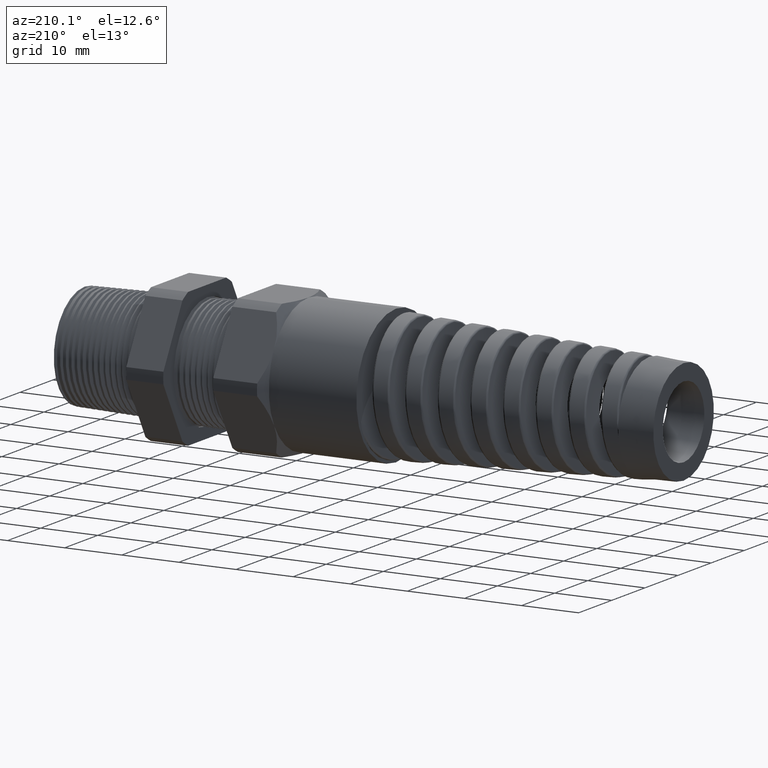
[diagram: clean part render]
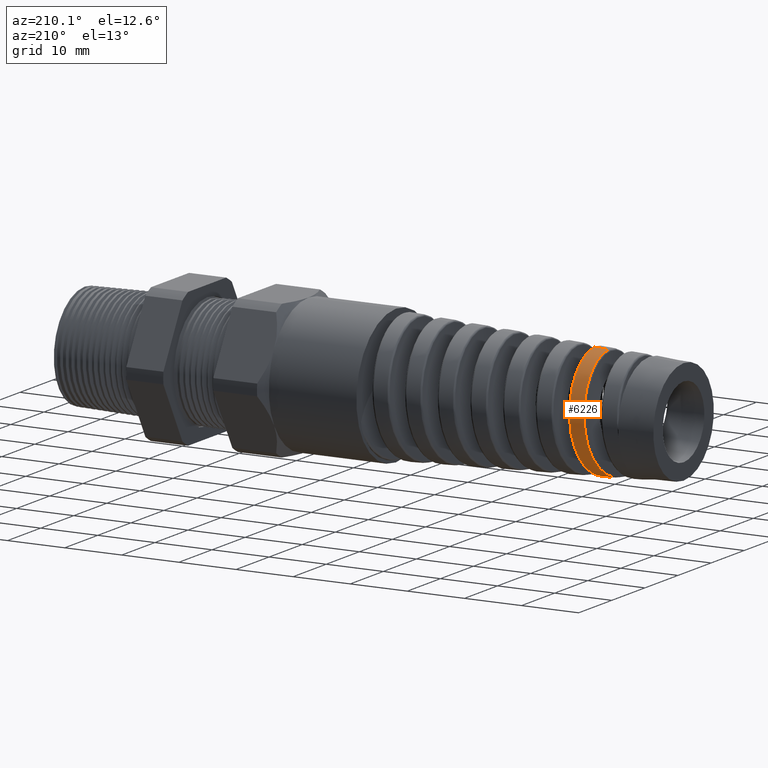
[diagram: same view with one face highlighted and labeled with its STEP entity id]
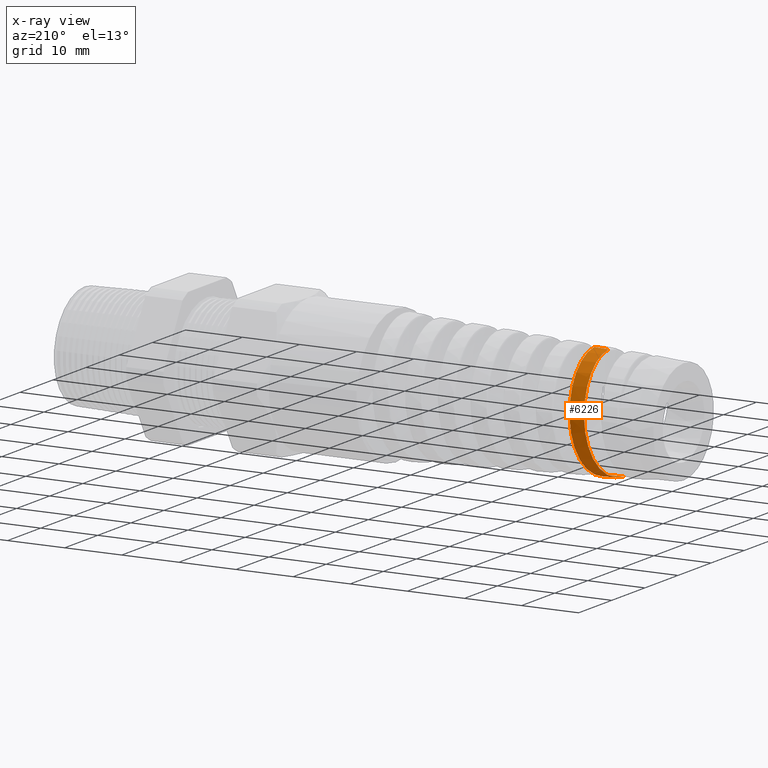
[diagram: x-ray of the same camera — body ghosted, the highlighted face saturated]
A machine part, auxiliary view. The second image highlights one B-rep face of the part: STEP entity #6226.
The next image is the same camera in x-ray: the body ghosted, the highlighted face saturated — about 0% of this face is hidden behind the body in this view.
In plain terms, the highlighted conical surface has half-angle 2.5 deg.
Its self-contained STEP definition (entity closure, byte-faithful):
#323 = CARTESIAN_POINT ( 'NONE',  ( -3.443178324159461100, -1.183486831128714200E-015, -0.3794830795497082200 ) ) ;
#458 = LINE ( 'NONE', #567, #564 ) ;
#460 = CARTESIAN_POINT ( 'NONE',  ( -3.235291199206982200, 4.377409241235282400E-014, 0.3885596274436731200 ) ) ;
#464 = CARTESIAN_POINT ( 'NONE',  ( -3.333009529310336600, 8.372223358021372500E-013, 0.3842931530119154100 ) ) ;
#520 = FACE_OUTER_BOUND ( 'NONE', #6227, .T. ) ;
#522 = CONICAL_SURFACE ( 'NONE', #534, 0.4699999999999998600, 0.04363323129985858400 ) ;
#528 = DIRECTION ( 'NONE',  ( 0.0000000000000000000, 0.0000000000000000000, -1.000000000000000000 ) ) ;
#530 = DIRECTION ( 'NONE',  ( 1.000000000000000000, 0.0000000000000000000, 0.0000000000000000000 ) ) ;
#532 = CARTESIAN_POINT ( 'NONE',  ( -1.369999999999999900, 0.0000000000000000000, 0.0000000000000000000 ) ) ;
#534 = AXIS2_PLACEMENT_3D ( 'NONE', #532, #530, #528 ) ;
#563 = DIRECTION ( 'NONE',  ( 0.9990482215818576900, 5.341834311772765600E-018, 0.04361938736533634700 ) ) ;
#564 = VECTOR ( 'NONE', #563, 39.37007874015748100 ) ;
#567 = CARTESIAN_POINT ( 'NONE',  ( -1.369999999999999900, 5.755839955992558400E-017, 0.4699999999999998600 ) ) ;
#568 = CARTESIAN_POINT ( 'NONE',  ( -3.402837838483439000, 0.3482261599920595800, -0.1556944496728563900 ) ) ;
#570 = CARTESIAN_POINT ( 'NONE',  ( -3.403984696302419600, 0.3429009058366656600, -0.1669905103815940700 ) ) ;
#573 = CARTESIAN_POINT ( 'NONE',  ( -3.406295635786484900, 0.3310753016979928200, -0.1891536233723160900 ) ) ;
#575 = CARTESIAN_POINT ( 'NONE',  ( -3.407457617353016200, 0.3245786956575668600, -0.1999958401092232500 ) ) ;
#577 = CARTESIAN_POINT ( 'NONE',  ( -3.410909521721167800, 0.3037525021543332500, -0.2311659064295091800 ) ) ;
#578 = CARTESIAN_POINT ( 'NONE',  ( -3.413189451317950200, 0.2879752762551450700, -0.2503950311962809300 ) ) ;
#579 = CARTESIAN_POINT ( 'NONE',  ( -3.416641002391589000, 0.2614714158243556800, -0.2769060516976227800 ) ) ;
#580 = CARTESIAN_POINT ( 'NONE',  ( -3.417803548159032500, 0.2521059960474549800, -0.2853941334282745800 ) ) ;
#581 = CARTESIAN_POINT ( 'NONE',  ( -3.420118061610111200, 0.2326763562757941100, -0.3013171878992535500 ) ) ;
#584 = CARTESIAN_POINT ( 'NONE',  ( -3.421267877154137200, 0.2226360485682213900, -0.3087434204736289000 ) ) ;
#585 = CARTESIAN_POINT ( 'NONE',  ( -3.424711768729546500, 0.1915656075891494500, -0.3294576630136230000 ) ) ;
#587 = CARTESIAN_POINT ( 'NONE',  ( -3.426998881636764700, 0.1695950172118683700, -0.3411964076006497900 ) ) ;
#590 = CARTESIAN_POINT ( 'NONE',  ( -3.430480356652744400, 0.1346947963591412500, -0.3555898681674752900 ) ) ;
#592 = CARTESIAN_POINT ( 'NONE',  ( -3.431640912325682400, 0.1228229118337406100, -0.3598059049018115200 ) ) ;
#594 = CARTESIAN_POINT ( 'NONE',  ( -3.433944397609687700, 0.09891780689295963400, -0.3669940083191271500 ) ) ;
#597 = CARTESIAN_POINT ( 'NONE',  ( -3.436239451820887400, 0.07475904334075524100, -0.3729769692934668000 ) ) ;
#598 = CARTESIAN_POINT ( 'NONE',  ( -3.438539587208713200, 0.05010008173049618200, -0.3765736614640773900 ) ) ;
#599 = CARTESIAN_POINT ( 'NONE',  ( -3.440852057838745800, 0.02518723023048390800, -0.3789547264209223200 ) ) ;
#600 = CARTESIAN_POINT ( 'NONE',  ( -3.442020273403658700, 0.01253718465889694600, -0.3795336411376426000 ) ) ;
#601 = CARTESIAN_POINT ( 'NONE',  ( -3.443178324159461100, -1.183486831128714200E-015, -0.3794830795497082200 ) ) ;
#608 = B_SPLINE_CURVE_WITH_KNOTS ( 'NONE', 3,
 ( #601, #600, #599, #598, #597, #594, #592, #590, #587, #585, #584, #581, #580, #579, #578, #577, #575, #573, #570, #568, #716, #715, #712, #710, #708, #706, #705, #704, #703, #702, #699, #697, #695, #693, #691, #690, #689, #688, #687, #685, #682, #680, #678, #677, #676, #675, #674, #671 ),
 .UNSPECIFIED., .F., .F.,
 ( 4, 2, 1, 2, 2, 2, 2, 2, 2, 2, 2, 2, 2, 1, 2, 2, 2, 2, 2, 2, 2, 2, 2, 2, 4 ),
 ( 0.04691067381153286200, 0.04787279394105492500, 0.04883491407057698900, 0.04979703420009905900, 0.05075915432962112300, 0.05268339458866525000, 0.05364551471818732000, 0.05460763484770938400, 0.05653187510675351800, 0.05749399523627558200, 0.05845611536579764500, 0.06038035562484177900, 0.06134247575436384300, 0.06230459588388590600, 0.06326671601340797000, 0.06422883614293004000, 0.06615307640197416700, 0.06807731666101829400, 0.07000155692006242200, 0.07096367704958447800, 0.07192579717910654900, 0.07385003743815067600, 0.07577427769719480300, 0.07673639782671687300, 0.07769851795623894400 ),
 .UNSPECIFIED. ) ;
#671 = CARTESIAN_POINT ( 'NONE',  ( -3.333009529310336600, 8.372223358021372500E-013, 0.3842931530119154100 ) ) ;
#674 = CARTESIAN_POINT ( 'NONE',  ( -3.334151353107198900, 0.01251752826588205600, 0.3842432999082817100 ) ) ;
#675 = CARTESIAN_POINT ( 'NONE',  ( -3.335305681234968400, 0.02516429864577002200, 0.3835727297214183200 ) ) ;
#676 = CARTESIAN_POINT ( 'NONE',  ( -3.337594461052795700, 0.05010150450803210100, 0.3810175128944158200 ) ) ;
#677 = CARTESIAN_POINT ( 'NONE',  ( -3.338732491102881300, 0.06243148834652794500, 0.3791389262622830200 ) ) ;
#678 = CARTESIAN_POINT ( 'NONE',  ( -3.342142574163335000, 0.09901329363882931100, 0.3717396482657624500 ) ) ;
#680 = CARTESIAN_POINT ( 'NONE',  ( -3.344408210346031300, 0.1228611369366006400, 0.3644724515930055600 ) ) ;
#682 = CARTESIAN_POINT ( 'NONE',  ( -3.349016296401514700, 0.1694229590504959500, 0.3450746211259428400 ) ) ;
#685 = CARTESIAN_POINT ( 'NONE',  ( -3.351287435392326800, 0.1913980454523004400, 0.3332480466480701200 ) ) ;
#687 = CARTESIAN_POINT ( 'NONE',  ( -3.354702517954705400, 0.2224052750684893400, 0.3124816842545907700 ) ) ;
#688 = CARTESIAN_POINT ( 'NONE',  ( -3.355842311934848200, 0.2324169299660174800, 0.3050497252661677500 ) ) ;
#689 = CARTESIAN_POINT ( 'NONE',  ( -3.358134513752372800, 0.2517772047123161300, 0.2891444156139509900 ) ) ;
#690 = CARTESIAN_POINT ( 'NONE',  ( -3.359291693281401000, 0.2611569201340346900, 0.2806322722931923800 ) ) ;
#691 = CARTESIAN_POINT ( 'NONE',  ( -3.362729113215768600, 0.2877024593236640600, 0.2540476008095151600 ) ) ;
#693 = CARTESIAN_POINT ( 'NONE',  ( -3.364996495586628300, 0.3034750626503689400, 0.2348082675918288200 ) ) ;
#695 = CARTESIAN_POINT ( 'NONE',  ( -3.369569136390222900, 0.3312096834233239100, 0.1933373586594650800 ) ) ;
#697 = CARTESIAN_POINT ( 'NONE',  ( -3.371888600023303300, 0.3432051387096256600, 0.1709119321064159200 ) ) ;
#699 = CARTESIAN_POINT ( 'NONE',  ( -3.376456694878892800, 0.3622945430005324300, 0.1248629020211701900 ) ) ;
#702 = CARTESIAN_POINT ( 'NONE',  ( -3.378728026489019200, 0.3695503350020666900, 0.1010582216360037700 ) ) ;
#703 = CARTESIAN_POINT ( 'NONE',  ( -3.382181927787494500, 0.3769298590959517200, 0.06416328130272000400 ) ) ;
#704 = CARTESIAN_POINT ( 'NONE',  ( -3.383343063402994800, 0.3787962883903067100, 0.05164177739199721200 ) ) ;
#705 = CARTESIAN_POINT ( 'NONE',  ( -3.385639552439048600, 0.3812632428073166600, 0.02674374608187470400 ) ) ;
#706 = CARTESIAN_POINT ( 'NONE',  ( -3.387923209533215500, 0.3824971286274677100, 0.001857330932205700100 ) ) ;
#708 = CARTESIAN_POINT ( 'NONE',  ( -3.390205490851256400, 0.3813066349918637400, -0.02300404444048559700 ) ) ;
#710 = CARTESIAN_POINT ( 'NONE',  ( -3.392498593985313600, 0.3788901044428423200, -0.04785169424448034600 ) ) ;
#712 = CARTESIAN_POINT ( 'NONE',  ( -3.393655315496672200, 0.3770583688972533000, -0.06031941904989029200 ) ) ;
#715 = CARTESIAN_POINT ( 'NONE',  ( -3.397125710880855500, 0.3697221003552602100, -0.09734635955265104300 ) ) ;
#716 = CARTESIAN_POINT ( 'NONE',  ( -3.399405033465473700, 0.3624863495144461400, -0.1211816480285189300 ) ) ;
#2489 = CARTESIAN_POINT ( 'NONE',  ( -3.325575546051886500, 0.2041385207150590300, -0.3262197714629465600 ) ) ;
#2490 = CARTESIAN_POINT ( 'NONE',  ( -3.322113994325404600, 0.2358155628639989300, -0.3050941027512525900 ) ) ;
#2491 = CARTESIAN_POINT ( 'NONE',  ( -3.319840075113207800, 0.2552765978679143500, -0.2891241377344419500 ) ) ;
#2492 = CARTESIAN_POINT ( 'NONE',  ( -3.315262679015632300, 0.2909490723624295100, -0.2534983631299561600 ) ) ;
#2493 = CARTESIAN_POINT ( 'NONE',  ( -3.312936973506487100, 0.3072718500946265400, -0.2336158569482745000 ) ) ;
#2494 = CARTESIAN_POINT ( 'NONE',  ( -3.308355502080808200, 0.3352922364586281600, -0.1916392617312670200 ) ) ;
#2495 = CARTESIAN_POINT ( 'NONE',  ( -3.306085895187790100, 0.3471540560012071300, -0.1694459135149465900 ) ) ;
#2496 = CARTESIAN_POINT ( 'NONE',  ( -3.302641274590613300, 0.3616860001894786600, -0.1343344248477281500 ) ) ;
#2497 = CARTESIAN_POINT ( 'NONE',  ( -3.301481150151264200, 0.3659947359691857500, -0.1222683547056616200 ) ) ;
#2498 = CARTESIAN_POINT ( 'NONE',  ( -3.299183322661125100, 0.3733274198738849000, -0.09800882524340422100 ) ) ;
#2499 = CARTESIAN_POINT ( 'NONE',  ( -3.298041089494856000, 0.3763756736530798300, -0.08577104424885416400 ) ) ;
#2500 = CARTESIAN_POINT ( 'NONE',  ( -3.294619613089232700, 0.3837053585409980800, -0.04874183095937847200 ) ) ;
#2501 = CARTESIAN_POINT ( 'NONE',  ( -3.292344800650385000, 0.3861893168545961200, -0.02360495901464681700 ) ) ;
#2502 = CARTESIAN_POINT ( 'NONE',  ( -3.287728526739825500, 0.3861401289578322800, 0.02740162230581735800 ) ) ;
#2503 = CARTESIAN_POINT ( 'NONE',  ( -3.285456715487482500, 0.3836140955934085300, 0.05248836301568813500 ) ) ;
#2504 = CARTESIAN_POINT ( 'NONE',  ( -3.282039709864888400, 0.3762212727563706800, 0.08951267835653414800 ) ) ;
#2505 = CARTESIAN_POINT ( 'NONE',  ( -3.280899726953312900, 0.3731519346225159500, 0.1017524586456384800 ) ) ;
#2506 = CARTESIAN_POINT ( 'NONE',  ( -3.278606700341651200, 0.3657752659494011800, 0.1260230023208709900 ) ) ;
#2507 = CARTESIAN_POINT ( 'NONE',  ( -3.277450828808220300, 0.3614499918860438800, 0.1380782088661728600 ) ) ;
#2508 = CARTESIAN_POINT ( 'NONE',  ( -3.274019946103648800, 0.3468855934339915000, 0.1731430040093085700 ) ) ;
#2509 = CARTESIAN_POINT ( 'NONE',  ( -3.271756509206829000, 0.3350071852985155900, 0.1953240114934955400 ) ) ;
#2510 = CARTESIAN_POINT ( 'NONE',  ( -3.268334192335185000, 0.3139665781760334100, 0.2268124079544947800 ) ) ;
#2511 = CARTESIAN_POINT ( 'NONE',  ( -3.267185119912669100, 0.3063821516398048100, 0.2370452280854452000 ) ) ;
#2512 = CARTESIAN_POINT ( 'NONE',  ( -3.264886811063016000, 0.2902244484190637000, 0.2567254257155308100 ) ) ;
#2513 = CARTESIAN_POINT ( 'NONE',  ( -3.263746964373456900, 0.2817232907243286100, 0.2660927883896571600 ) ) ;
#2514 = CARTESIAN_POINT ( 'NONE',  ( -3.260336811632401400, 0.2549934450212019700, 0.2928196509572143500 ) ) ;
#2515 = CARTESIAN_POINT ( 'NONE',  ( -3.258075564676655500, 0.2355498226457784200, 0.3088167191810175500 ) ) ;
#2516 = CARTESIAN_POINT ( 'NONE',  ( -3.254638269667256900, 0.2038976254957393700, 0.3300149380341045900 ) ) ;
#2517 = CARTESIAN_POINT ( 'NONE',  ( -3.253485712774773800, 0.1929294361815419600, 0.3366006530751970400 ) ) ;
#2518 = CARTESIAN_POINT ( 'NONE',  ( -3.251206460956871200, 0.1706370779734754700, 0.3485425955021236900 ) ) ;
#2519 = CARTESIAN_POINT ( 'NONE',  ( -3.248939713216532100, 0.1478727639427857000, 0.3593375114568453900 ) ) ;
#2520 = CARTESIAN_POINT ( 'NONE',  ( -3.246674162100274200, 0.1241814255534461300, 0.3678738453880816600 ) ) ;
#2521 = CARTESIAN_POINT ( 'NONE',  ( -3.244398079782824200, 0.1000217751715273600, 0.3752665387265753900 ) ) ;
#2522 = CARTESIAN_POINT ( 'NONE',  ( -3.243249136599319500, 0.08764623214630491700, 0.3784026088009629900 ) ) ;
#2523 = CARTESIAN_POINT ( 'NONE',  ( -3.239812247711772600, 0.05024860437766795500, 0.3859366690789660100 ) ) ;
#2524 = CARTESIAN_POINT ( 'NONE',  ( -3.237556292875997300, 0.02518589201044373400, 0.3884607313183048300 ) ) ;
#2525 = CARTESIAN_POINT ( 'NONE',  ( -3.235291199206982200, 4.377409241235282400E-014, 0.3885596274436731200 ) ) ;
#2527 = B_SPLINE_CURVE_WITH_KNOTS ( 'NONE', 3,
 ( #2525, #2524, #2523, #2522, #2521, #2520, #2519, #2518, #2517, #2516, #2515, #2514, #2513, #2512, #2511, #2510, #2509, #2508, #2507, #2506, #2505, #2504, #2503, #2502, #2501, #2500, #2499, #2498, #2497, #2496, #2495, #2494, #2493, #2492, #2491, #2490, #2489, #2561, #2560, #2559, #2558, #2557, #2556, #2555, #2554, #2553 ),
 .UNSPECIFIED., .F., .F.,
 ( 4, 2, 2, 1, 2, 2, 2, 2, 2, 2, 2, 2, 2, 2, 2, 2, 2, 2, 2, 2, 1, 2, 2, 4 ),
 ( 0.4175546464322140700, 0.4195037457677305300, 0.4204782954354887600, 0.4214528451032469900, 0.4224273947710052200, 0.4234019444387634400, 0.4253510437742799000, 0.4263255934420381300, 0.4273001431097963600, 0.4292492424453128200, 0.4302237921130710500, 0.4311983417808292800, 0.4331474411163457300, 0.4350965404518621900, 0.4360710901196204200, 0.4370456397873786500, 0.4389947391228951100, 0.4409438384584115600, 0.4428929377939280800, 0.4438674874616863100, 0.4448420371294445300, 0.4458165867972027600, 0.4467911364649609900, 0.4487402358004774500 ),
 .UNSPECIFIED. ) ;
#2528 = CARTESIAN_POINT ( 'NONE',  ( -3.345125553645410800, 4.162608418280889700E-014, -0.3837641559651435700 ) ) ;
#2544 = DIRECTION ( 'NONE',  ( 0.9990482215818576900, 0.0000000000000000000, -0.04361938736533634700 ) ) ;
#2545 = VECTOR ( 'NONE', #2544, 39.37007874015748100 ) ;
#2546 = CARTESIAN_POINT ( 'NONE',  ( -1.369999999999999900, 0.0000000000000000000, -0.4699999999999998600 ) ) ;
#2547 = LINE ( 'NONE', #2546, #2545 ) ;
#2553 = CARTESIAN_POINT ( 'NONE',  ( -3.345125553645410800, 4.162608418280889700E-014, -0.3837641559651435700 ) ) ;
#2554 = CARTESIAN_POINT ( 'NONE',  ( -3.342831198223475700, 0.02518870976727375500, -0.3838643296862298000 ) ) ;
#2555 = CARTESIAN_POINT ( 'NONE',  ( -3.340546747286622600, 0.05026700403156805800, -0.3815082089650765900 ) ) ;
#2556 = CARTESIAN_POINT ( 'NONE',  ( -3.337073089184688700, 0.08770838296336667900, -0.3741842542601665500 ) ) ;
#2557 = CARTESIAN_POINT ( 'NONE',  ( -3.335913176675283900, 0.1000985678035789400, -0.3711113493284122800 ) ) ;
#2558 = CARTESIAN_POINT ( 'NONE',  ( -3.333615494143053100, 0.1242895617717449100, -0.3638303864960439300 ) ) ;
#2559 = CARTESIAN_POINT ( 'NONE',  ( -3.331328584951766200, 0.1480143394364942500, -0.3553918336682546100 ) ) ;
#2560 = CARTESIAN_POINT ( 'NONE',  ( -3.329039581549577700, 0.1708165156308609800, -0.3446682274891765800 ) ) ;
#2561 = CARTESIAN_POINT ( 'NONE',  ( -3.326738556585633800, 0.1931490058414299100, -0.3327840012341274400 ) ) ;
#6183 = VERTEX_POINT ( 'NONE', #323 ) ;
#6206 = VERTEX_POINT ( 'NONE', #464 ) ;
#6208 = VERTEX_POINT ( 'NONE', #460 ) ;
#6209 = ORIENTED_EDGE ( 'NONE', *, *, #6213, .T. ) ;
#6213 = EDGE_CURVE ( 'NONE', #6206, #6208, #458, .T. ) ;
#6225 = ORIENTED_EDGE ( 'NONE', *, *, #6228, .T. ) ;
#6226 = ADVANCED_FACE ( 'NONE', ( #520 ), #522, .T. ) ;
#6227 = EDGE_LOOP ( 'NONE', ( #6225, #6209, #13757, #13767 ) ) ;
#6228 = EDGE_CURVE ( 'NONE', #6183, #6206, #608, .T. ) ;
#13757 = ORIENTED_EDGE ( 'NONE', *, *, #13759, .T. ) ;
#13759 = EDGE_CURVE ( 'NONE', #6208, #13761, #2527, .T. ) ;
#13761 = VERTEX_POINT ( 'NONE', #2528 ) ;
#13767 = ORIENTED_EDGE ( 'NONE', *, *, #13769, .F. ) ;
#13769 = EDGE_CURVE ( 'NONE', #6183, #13761, #2547, .T. ) ;